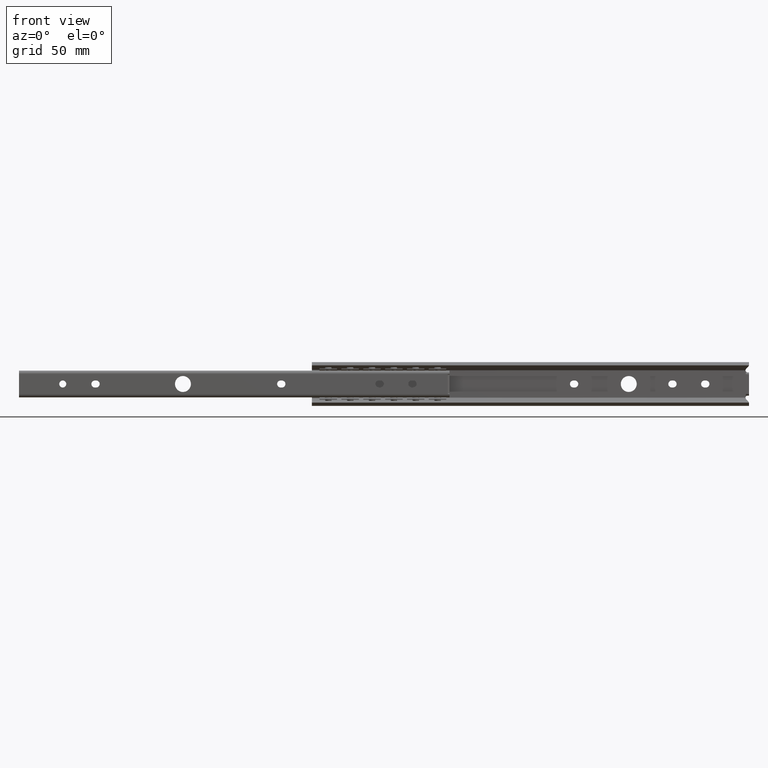
[diagram: clean part render]
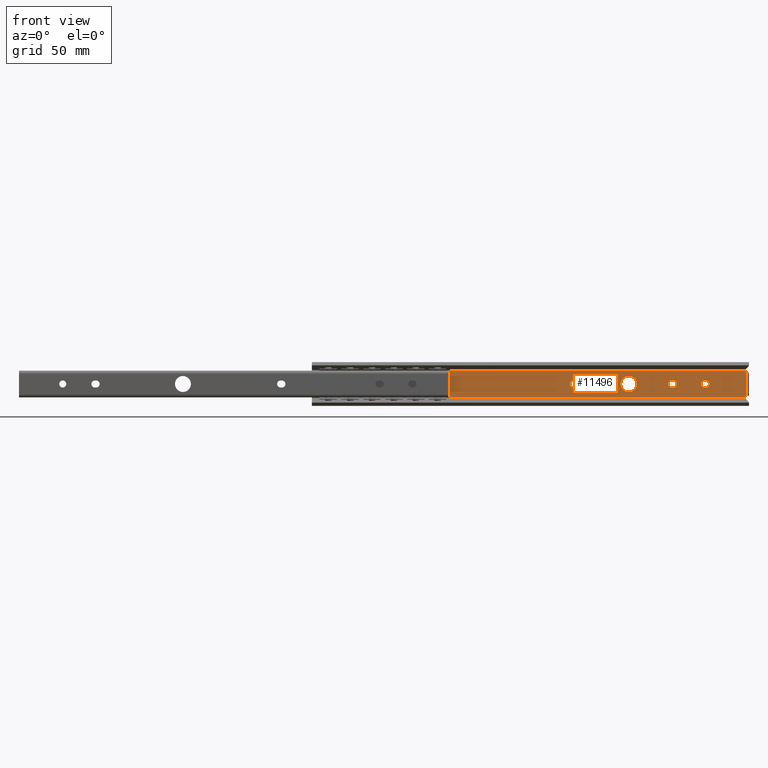
[diagram: same view with one face highlighted and labeled with its STEP entity id]
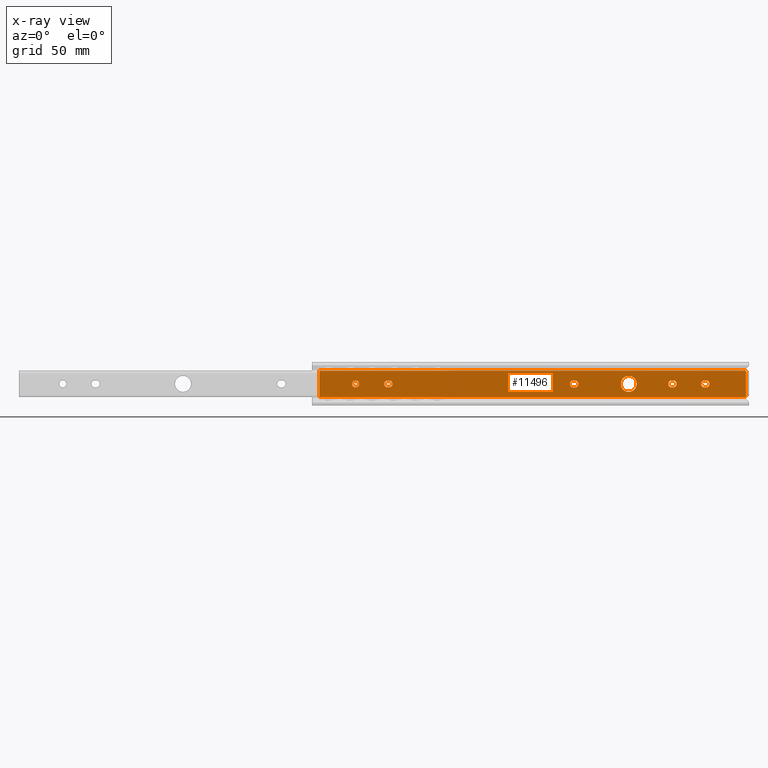
[diagram: x-ray of the same camera — body ghosted, the highlighted face saturated]
A machine part, front view. The second image highlights one B-rep face of the part: STEP entity #11496.
The next image is the same camera in x-ray: the body ghosted, the highlighted face saturated — about 0% of this face is hidden behind the body in this view.
In plain terms, the highlighted face is a freeform B-spline surface patch.
Its self-contained STEP definition (entity closure, byte-faithful):
#8537=CARTESIAN_POINT('',(141.375515229066510,-1.399999999999956,0.430824958969968));
#8538=VERTEX_POINT('',#8537);
#8539=CARTESIAN_POINT('',(145.0,-1.399999999999956,-3.650000000000000));
#8540=VERTEX_POINT('',#8539);
#8541=CARTESIAN_POINT('',(141.375515229066560,-1.399999999999956,0.430824958969968));
#8542=CARTESIAN_POINT('',(141.349999999999970,-1.399999999999956,0.216168039228414));
#8543=CARTESIAN_POINT('',(141.349999999999990,-1.399999999999956,0.0));
#8544=CARTESIAN_POINT('',(141.349999999999990,-1.399999999999956,-3.650000000000000));
#8545=CARTESIAN_POINT('',(145.0,-1.399999999999956,-3.650000000000000));
#8553=(BOUNDED_CURVE()B_SPLINE_CURVE(2,(#8541,#8542,#8543,#8544,#8545),.UNSPECIFIED.,.F.,.U.)B_SPLINE_CURVE_WITH_KNOTS((3,2,3),(0.729562473285040,0.750000000000000,1.0),.UNSPECIFIED.)CURVE()GEOMETRIC_REPRESENTATION_ITEM()RATIONAL_B_SPLINE_CURVE((0.956026753735892,0.976055948063478,1.0,0.707106781186547,1.0))REPRESENTATION_ITEM(''));
#8554=EDGE_CURVE('',#8538,#8540,#8553,.T.);
#8556=CARTESIAN_POINT('',(148.643192014112290,-1.399999999999956,-0.222827171386619));
#8557=VERTEX_POINT('',#8556);
#8558=CARTESIAN_POINT('',(145.0,-1.399999999999956,-3.650000000000000));
#8559=CARTESIAN_POINT('',(148.433577140269510,-1.399999999999957,-3.650000000000000));
#8560=CARTESIAN_POINT('',(148.643192014112260,-1.399999999999956,-0.222827171386619));
#8568=(BOUNDED_CURVE()B_SPLINE_CURVE(2,(#8558,#8559,#8560),.UNSPECIFIED.,.F.,.U.)B_SPLINE_CURVE_WITH_KNOTS((3,3),(0.0,0.239332962044529),.UNSPECIFIED.)CURVE()GEOMETRIC_REPRESENTATION_ITEM()RATIONAL_B_SPLINE_CURVE((1.0,0.719603993514480,0.976072041250052))REPRESENTATION_ITEM(''));
#8569=EDGE_CURVE('',#8540,#8557,#8568,.T.);
#8636=CARTESIAN_POINT('',(145.0,-1.399999999999956,3.650000000000000));
#8637=VERTEX_POINT('',#8636);
#8638=CARTESIAN_POINT('',(145.0,-1.399999999999956,3.650000000000000));
#8639=CARTESIAN_POINT('',(141.758162984732080,-1.399999999999956,3.649999999999999));
#8640=CARTESIAN_POINT('',(141.375515229066560,-1.399999999999956,0.430824958969968));
#8648=(BOUNDED_CURVE()B_SPLINE_CURVE(2,(#8638,#8639,#8640),.UNSPECIFIED.,.F.,.U.)B_SPLINE_CURVE_WITH_KNOTS((3,3),(0.500000000000000,0.729562473285039),.UNSPECIFIED.)CURVE()GEOMETRIC_REPRESENTATION_ITEM()RATIONAL_B_SPLINE_CURVE((1.0,0.731050833123071,0.956026753735890))REPRESENTATION_ITEM(''));
#8649=EDGE_CURVE('',#8637,#8538,#8648,.T.);
#8683=CARTESIAN_POINT('',(148.643192014112260,-1.399999999999956,-0.222827171386619));
#8684=CARTESIAN_POINT('',(148.649999999999920,-1.399999999999956,-0.111517588130085));
#8685=CARTESIAN_POINT('',(148.650000000000010,-1.399999999999956,0.0));
#8686=CARTESIAN_POINT('',(148.650000000000030,-1.399999999999956,3.650000000000000));
#8687=CARTESIAN_POINT('',(145.0,-1.399999999999956,3.650000000000000));
#8695=(BOUNDED_CURVE()B_SPLINE_CURVE(2,(#8683,#8684,#8685,#8686,#8687),.UNSPECIFIED.,.F.,.U.)B_SPLINE_CURVE_WITH_KNOTS((3,2,3),(0.239332962044529,0.250000000000000,0.500000000000000),.UNSPECIFIED.)CURVE()GEOMETRIC_REPRESENTATION_ITEM()RATIONAL_B_SPLINE_CURVE((0.976072041250051,0.987502787672067,1.0,0.707106781186547,1.0))REPRESENTATION_ITEM(''));
#8696=EDGE_CURVE('',#8557,#8637,#8695,.T.);
#8723=CARTESIAN_POINT('',(18.411184758290592,-1.399999999999956,0.188854779425486));
#8724=VERTEX_POINT('',#8723);
#8725=CARTESIAN_POINT('',(20.0,-1.399999999999956,-1.600000000000000));
#8726=VERTEX_POINT('',#8725);
#8727=CARTESIAN_POINT('',(18.411184758290592,-1.399999999999956,0.188854779425486));
#8728=CARTESIAN_POINT('',(18.399999999999999,-1.399999999999956,0.094758595459749));
#8729=CARTESIAN_POINT('',(18.399999999999999,-1.399999999999956,0.0));
#8730=CARTESIAN_POINT('',(18.399999999999991,-1.399999999999956,-1.600000000000000));
#8731=CARTESIAN_POINT('',(20.0,-1.399999999999956,-1.600000000000000));
#8739=(BOUNDED_CURVE()B_SPLINE_CURVE(2,(#8727,#8728,#8729,#8730,#8731),.UNSPECIFIED.,.F.,.U.)B_SPLINE_CURVE_WITH_KNOTS((3,2,3),(0.729562472670067,0.750000000000000,1.0),.UNSPECIFIED.)CURVE()GEOMETRIC_REPRESENTATION_ITEM()RATIONAL_B_SPLINE_CURVE((0.956026752530521,0.976055947342993,1.0,0.707106781186548,1.0))REPRESENTATION_ITEM(''));
#8740=EDGE_CURVE('',#8724,#8726,#8739,.T.);
#8742=CARTESIAN_POINT('',(21.597015677303609,-1.399999999999956,-0.097677666057755));
#8743=VERTEX_POINT('',#8742);
#8744=CARTESIAN_POINT('',(20.0,-1.399999999999956,-1.600000000000000));
#8745=CARTESIAN_POINT('',(21.505129701757706,-1.399999999999957,-1.600000000000000));
#8746=CARTESIAN_POINT('',(21.597015677303609,-1.399999999999956,-0.097677666057755));
#8754=(BOUNDED_CURVE()B_SPLINE_CURVE(2,(#8744,#8745,#8746),.UNSPECIFIED.,.F.,.U.)B_SPLINE_CURVE_WITH_KNOTS((3,3),(0.0,0.239332961636498),.UNSPECIFIED.)CURVE()GEOMETRIC_REPRESENTATION_ITEM()RATIONAL_B_SPLINE_CURVE((1.0,0.719603993992519,0.976072040375563))REPRESENTATION_ITEM(''));
#8755=EDGE_CURVE('',#8726,#8743,#8754,.T.);
#8822=CARTESIAN_POINT('',(20.0,-1.399999999999956,1.600000000000000));
#8823=VERTEX_POINT('',#8822);
#8824=CARTESIAN_POINT('',(20.0,-1.399999999999956,1.600000000000000));
#8825=CARTESIAN_POINT('',(18.578920765637967,-1.399999999999956,1.600000000000000));
#8826=CARTESIAN_POINT('',(18.411184758290592,-1.399999999999956,0.188854779425486));
#8834=(BOUNDED_CURVE()B_SPLINE_CURVE(2,(#8824,#8825,#8826),.UNSPECIFIED.,.F.,.U.)B_SPLINE_CURVE_WITH_KNOTS((3,3),(0.500000000000000,0.729562472670068),.UNSPECIFIED.)CURVE()GEOMETRIC_REPRESENTATION_ITEM()RATIONAL_B_SPLINE_CURVE((1.0,0.731050833843554,0.956026752530523))REPRESENTATION_ITEM(''));
#8835=EDGE_CURVE('',#8823,#8724,#8834,.T.);
#8869=CARTESIAN_POINT('',(21.597015677303613,-1.399999999999957,-0.097677666057755));
#8870=CARTESIAN_POINT('',(21.600000000000001,-1.399999999999955,-0.048884424087582));
#8871=CARTESIAN_POINT('',(21.600000000000001,-1.399999999999956,0.0));
#8872=CARTESIAN_POINT('',(21.600000000000005,-1.399999999999956,1.600000000000000));
#8873=CARTESIAN_POINT('',(20.0,-1.399999999999956,1.600000000000000));
#8881=(BOUNDED_CURVE()B_SPLINE_CURVE(2,(#8869,#8870,#8871,#8872,#8873),.UNSPECIFIED.,.F.,.U.)B_SPLINE_CURVE_WITH_KNOTS((3,2,3),(0.239332961636497,0.250000000000000,0.500000000000000),.UNSPECIFIED.)CURVE()GEOMETRIC_REPRESENTATION_ITEM()RATIONAL_B_SPLINE_CURVE((0.976072040375563,0.987502787194029,1.0,0.707106781186548,1.0))REPRESENTATION_ITEM(''));
#8882=EDGE_CURVE('',#8743,#8823,#8881,.T.);
#8892=CARTESIAN_POINT('',(179.699999999999990,-1.399999999999920,-1.600000000000000));
#8893=VERTEX_POINT('',#8892);
#8894=CARTESIAN_POINT('',(180.300000000000010,-1.399999999999956,-1.600000000000000));
#8895=VERTEX_POINT('',#8894);
#8896=CARTESIAN_POINT('',(179.699999999999990,-1.399999999999920,-1.600000000000000));
#8897=CARTESIAN_POINT('',(180.300000000000010,-1.399999999999956,-1.600000000000000));
#8898=QUASI_UNIFORM_CURVE('',1,(#8896,#8897),.UNSPECIFIED.,.F.,.U.);
#8899=EDGE_CURVE('',#8893,#8895,#8898,.T.);
#8941=CARTESIAN_POINT('',(179.699999999999990,-1.399999999999956,1.599999999999910));
#8942=VERTEX_POINT('',#8941);
#8943=CARTESIAN_POINT('',(179.699999999999990,-1.399999999999956,1.600000000000000));
#8944=CARTESIAN_POINT('',(178.099999999999970,-1.399999999999956,1.600000000000000));
#8945=CARTESIAN_POINT('',(178.099999999999990,-1.399999999999956,0.0));
#8946=CARTESIAN_POINT('',(178.099999999999970,-1.399999999999956,-1.600000000000000));
#8947=CARTESIAN_POINT('',(179.699999999999990,-1.399999999999956,-1.600000000000000));
#8955=(BOUNDED_CURVE()B_SPLINE_CURVE(2,(#8943,#8944,#8945,#8946,#8947),.UNSPECIFIED.,.F.,.U.)B_SPLINE_CURVE_WITH_KNOTS((3,2,3),(0.0,0.500000000000000,1.0),.UNSPECIFIED.)CURVE()GEOMETRIC_REPRESENTATION_ITEM()RATIONAL_B_SPLINE_CURVE((1.0,0.707106781186548,1.0,0.707106781186548,1.0))REPRESENTATION_ITEM(''));
#8956=EDGE_CURVE('',#8942,#8893,#8955,.T.);
#8989=CARTESIAN_POINT('',(180.300000000000010,-1.399999999999956,1.599999999999910));
#8990=VERTEX_POINT('',#8989);
#8991=CARTESIAN_POINT('',(180.300000000000010,-1.399999999999956,1.599999999999910));
#8992=CARTESIAN_POINT('',(179.699999999999990,-1.399999999999956,1.599999999999910));
#8993=QUASI_UNIFORM_CURVE('',1,(#8991,#8992),.UNSPECIFIED.,.F.,.U.);
#8994=EDGE_CURVE('',#8990,#8942,#8993,.T.);
#9030=CARTESIAN_POINT('',(180.300000000000010,-1.399999999999956,-1.600000000000000));
#9031=CARTESIAN_POINT('',(181.899999999999980,-1.399999999999956,-1.600000000000000));
#9032=CARTESIAN_POINT('',(181.900000000000010,-1.399999999999956,0.0));
#9033=CARTESIAN_POINT('',(181.899999999999980,-1.399999999999956,1.600000000000000));
#9034=CARTESIAN_POINT('',(180.300000000000010,-1.399999999999956,1.600000000000000));
#9042=(BOUNDED_CURVE()B_SPLINE_CURVE(2,(#9030,#9031,#9032,#9033,#9034),.UNSPECIFIED.,.F.,.U.)B_SPLINE_CURVE_WITH_KNOTS((3,2,3),(0.0,0.500000000000000,1.0),.UNSPECIFIED.)CURVE()GEOMETRIC_REPRESENTATION_ITEM()RATIONAL_B_SPLINE_CURVE((1.0,0.707106781186548,1.0,0.707106781186548,1.0))REPRESENTATION_ITEM(''));
#9043=EDGE_CURVE('',#8895,#8990,#9042,.T.);
#9070=CARTESIAN_POINT('',(164.699999999999990,-1.399999999999920,-1.600000000000000));
#9071=VERTEX_POINT('',#9070);
#9072=CARTESIAN_POINT('',(165.300000000000010,-1.399999999999956,-1.600000000000000));
#9073=VERTEX_POINT('',#9072);
#9074=CARTESIAN_POINT('',(164.699999999999990,-1.399999999999920,-1.600000000000000));
#9075=CARTESIAN_POINT('',(165.300000000000010,-1.399999999999956,-1.600000000000000));
#9076=QUASI_UNIFORM_CURVE('',1,(#9074,#9075),.UNSPECIFIED.,.F.,.U.);
#9077=EDGE_CURVE('',#9071,#9073,#9076,.T.);
#9119=CARTESIAN_POINT('',(164.699999999999990,-1.399999999999956,1.599999999999910));
#9120=VERTEX_POINT('',#9119);
#9121=CARTESIAN_POINT('',(164.699999999999990,-1.399999999999956,1.600000000000000));
#9122=CARTESIAN_POINT('',(163.099999999999990,-1.399999999999956,1.600000000000000));
#9123=CARTESIAN_POINT('',(163.099999999999990,-1.399999999999956,0.0));
#9124=CARTESIAN_POINT('',(163.099999999999990,-1.399999999999956,-1.600000000000000));
#9125=CARTESIAN_POINT('',(164.699999999999990,-1.399999999999956,-1.600000000000000));
#9133=(BOUNDED_CURVE()B_SPLINE_CURVE(2,(#9121,#9122,#9123,#9124,#9125),.UNSPECIFIED.,.F.,.U.)B_SPLINE_CURVE_WITH_KNOTS((3,2,3),(0.0,0.500000000000000,1.0),.UNSPECIFIED.)CURVE()GEOMETRIC_REPRESENTATION_ITEM()RATIONAL_B_SPLINE_CURVE((1.0,0.707106781186548,1.0,0.707106781186548,1.0))REPRESENTATION_ITEM(''));
#9134=EDGE_CURVE('',#9120,#9071,#9133,.T.);
#9167=CARTESIAN_POINT('',(165.300000000000010,-1.399999999999956,1.599999999999910));
#9168=VERTEX_POINT('',#9167);
#9169=CARTESIAN_POINT('',(165.300000000000010,-1.399999999999956,1.599999999999910));
#9170=CARTESIAN_POINT('',(164.699999999999990,-1.399999999999956,1.599999999999910));
#9171=QUASI_UNIFORM_CURVE('',1,(#9169,#9170),.UNSPECIFIED.,.F.,.U.);
#9172=EDGE_CURVE('',#9168,#9120,#9171,.T.);
#9208=CARTESIAN_POINT('',(165.300000000000010,-1.399999999999956,-1.600000000000000));
#9209=CARTESIAN_POINT('',(166.900000000000010,-1.399999999999956,-1.600000000000000));
#9210=CARTESIAN_POINT('',(166.900000000000010,-1.399999999999956,0.0));
#9211=CARTESIAN_POINT('',(166.900000000000010,-1.399999999999956,1.600000000000000));
#9212=CARTESIAN_POINT('',(165.300000000000010,-1.399999999999956,1.600000000000000));
#9220=(BOUNDED_CURVE()B_SPLINE_CURVE(2,(#9208,#9209,#9210,#9211,#9212),.UNSPECIFIED.,.F.,.U.)B_SPLINE_CURVE_WITH_KNOTS((3,2,3),(0.0,0.500000000000000,1.0),.UNSPECIFIED.)CURVE()GEOMETRIC_REPRESENTATION_ITEM()RATIONAL_B_SPLINE_CURVE((1.0,0.707106781186548,1.0,0.707106781186548,1.0))REPRESENTATION_ITEM(''));
#9221=EDGE_CURVE('',#9073,#9168,#9220,.T.);
#9248=CARTESIAN_POINT('',(119.700000000000000,-1.399999999999920,-1.600000000000000));
#9249=VERTEX_POINT('',#9248);
#9250=CARTESIAN_POINT('',(120.300000000000000,-1.399999999999956,-1.600000000000000));
#9251=VERTEX_POINT('',#9250);
#9252=CARTESIAN_POINT('',(119.700000000000000,-1.399999999999920,-1.600000000000000));
#9253=CARTESIAN_POINT('',(120.300000000000000,-1.399999999999956,-1.600000000000000));
#9254=QUASI_UNIFORM_CURVE('',1,(#9252,#9253),.UNSPECIFIED.,.F.,.U.);
#9255=EDGE_CURVE('',#9249,#9251,#9254,.T.);
#9297=CARTESIAN_POINT('',(119.700000000000000,-1.399999999999956,1.599999999999910));
#9298=VERTEX_POINT('',#9297);
#9299=CARTESIAN_POINT('',(119.700000000000000,-1.399999999999956,1.600000000000000));
#9300=CARTESIAN_POINT('',(118.099999999999980,-1.399999999999956,1.600000000000000));
#9301=CARTESIAN_POINT('',(118.099999999999990,-1.399999999999956,0.0));
#9302=CARTESIAN_POINT('',(118.099999999999980,-1.399999999999956,-1.600000000000000));
#9303=CARTESIAN_POINT('',(119.700000000000000,-1.399999999999956,-1.600000000000000));
#9311=(BOUNDED_CURVE()B_SPLINE_CURVE(2,(#9299,#9300,#9301,#9302,#9303),.UNSPECIFIED.,.F.,.U.)B_SPLINE_CURVE_WITH_KNOTS((3,2,3),(0.0,0.500000000000000,1.0),.UNSPECIFIED.)CURVE()GEOMETRIC_REPRESENTATION_ITEM()RATIONAL_B_SPLINE_CURVE((1.0,0.707106781186548,1.0,0.707106781186548,1.0))REPRESENTATION_ITEM(''));
#9312=EDGE_CURVE('',#9298,#9249,#9311,.T.);
#9345=CARTESIAN_POINT('',(120.300000000000000,-1.399999999999956,1.599999999999910));
#9346=VERTEX_POINT('',#9345);
#9347=CARTESIAN_POINT('',(120.300000000000000,-1.399999999999956,1.599999999999910));
#9348=CARTESIAN_POINT('',(119.700000000000000,-1.399999999999956,1.599999999999910));
#9349=QUASI_UNIFORM_CURVE('',1,(#9347,#9348),.UNSPECIFIED.,.F.,.U.);
#9350=EDGE_CURVE('',#9346,#9298,#9349,.T.);
#9386=CARTESIAN_POINT('',(120.300000000000000,-1.399999999999956,-1.600000000000000));
#9387=CARTESIAN_POINT('',(121.900000000000010,-1.399999999999956,-1.600000000000000));
#9388=CARTESIAN_POINT('',(121.900000000000010,-1.399999999999956,0.0));
#9389=CARTESIAN_POINT('',(121.900000000000010,-1.399999999999956,1.600000000000000));
#9390=CARTESIAN_POINT('',(120.300000000000000,-1.399999999999956,1.600000000000000));
#9398=(BOUNDED_CURVE()B_SPLINE_CURVE(2,(#9386,#9387,#9388,#9389,#9390),.UNSPECIFIED.,.F.,.U.)B_SPLINE_CURVE_WITH_KNOTS((3,2,3),(0.0,0.500000000000000,1.0),.UNSPECIFIED.)CURVE()GEOMETRIC_REPRESENTATION_ITEM()RATIONAL_B_SPLINE_CURVE((1.0,0.707106781186548,1.0,0.707106781186548,1.0))REPRESENTATION_ITEM(''));
#9399=EDGE_CURVE('',#9251,#9346,#9398,.T.);
#9426=CARTESIAN_POINT('',(34.700000000000003,-1.399999999999920,-1.600000000000080));
#9427=VERTEX_POINT('',#9426);
#9428=CARTESIAN_POINT('',(35.299999999999997,-1.399999999999956,-1.600000000000080));
#9429=VERTEX_POINT('',#9428);
#9430=CARTESIAN_POINT('',(34.700000000000003,-1.399999999999920,-1.600000000000080));
#9431=CARTESIAN_POINT('',(35.299999999999997,-1.399999999999956,-1.600000000000080));
#9432=QUASI_UNIFORM_CURVE('',1,(#9430,#9431),.UNSPECIFIED.,.F.,.U.);
#9433=EDGE_CURVE('',#9427,#9429,#9432,.T.);
#9475=CARTESIAN_POINT('',(34.700000000000003,-1.399999999999956,1.600000000000025));
#9476=VERTEX_POINT('',#9475);
#9477=CARTESIAN_POINT('',(34.700000000000003,-1.399999999999956,1.600000000000000));
#9478=CARTESIAN_POINT('',(33.100000000000009,-1.399999999999956,1.600000000000000));
#9479=CARTESIAN_POINT('',(33.100000000000001,-1.399999999999956,0.0));
#9480=CARTESIAN_POINT('',(33.100000000000009,-1.399999999999956,-1.600000000000000));
#9481=CARTESIAN_POINT('',(34.700000000000003,-1.399999999999920,-1.600000000000080));
#9489=(BOUNDED_CURVE()B_SPLINE_CURVE(2,(#9477,#9478,#9479,#9480,#9481),.UNSPECIFIED.,.F.,.U.)B_SPLINE_CURVE_WITH_KNOTS((3,2,3),(0.0,0.500000000000000,1.0),.UNSPECIFIED.)CURVE()GEOMETRIC_REPRESENTATION_ITEM()RATIONAL_B_SPLINE_CURVE((1.0,0.707106781186548,1.0,0.707106781186548,1.0))REPRESENTATION_ITEM(''));
#9490=EDGE_CURVE('',#9476,#9427,#9489,.T.);
#9523=CARTESIAN_POINT('',(35.299999999999997,-1.399999999999956,1.600000000000025));
#9524=VERTEX_POINT('',#9523);
#9525=CARTESIAN_POINT('',(35.299999999999997,-1.399999999999956,1.600000000000025));
#9526=CARTESIAN_POINT('',(34.700000000000003,-1.399999999999956,1.600000000000025));
#9527=QUASI_UNIFORM_CURVE('',1,(#9525,#9526),.UNSPECIFIED.,.F.,.U.);
#9528=EDGE_CURVE('',#9524,#9476,#9527,.T.);
#9564=CARTESIAN_POINT('',(35.299999999999997,-1.399999999999956,-1.600000000000080));
#9565=CARTESIAN_POINT('',(36.900000000000006,-1.399999999999956,-1.600000000000000));
#9566=CARTESIAN_POINT('',(36.899999999999999,-1.399999999999956,0.0));
#9567=CARTESIAN_POINT('',(36.900000000000006,-1.399999999999956,1.600000000000000));
#9568=CARTESIAN_POINT('',(35.299999999999997,-1.399999999999956,1.600000000000000));
#9576=(BOUNDED_CURVE()B_SPLINE_CURVE(2,(#9564,#9565,#9566,#9567,#9568),.UNSPECIFIED.,.F.,.U.)B_SPLINE_CURVE_WITH_KNOTS((3,2,3),(0.0,0.500000000000000,1.0),.UNSPECIFIED.)CURVE()GEOMETRIC_REPRESENTATION_ITEM()RATIONAL_B_SPLINE_CURVE((1.0,0.707106781186548,1.0,0.707106781186548,1.0))REPRESENTATION_ITEM(''));
#9577=EDGE_CURVE('',#9429,#9524,#9576,.T.);
#9708=CARTESIAN_POINT('',(198.599999999999990,-1.400000000000204,5.300000000000000));
#9709=VERTEX_POINT('',#9708);
#9715=CARTESIAN_POINT('',(198.599999999999990,-1.400000000000204,-5.300000000000100));
#9716=VERTEX_POINT('',#9715);
#9717=CARTESIAN_POINT('',(198.599999999999990,-1.400000000000204,-5.300000000000100));
#9718=CARTESIAN_POINT('',(198.599999999999990,-1.400000000000204,5.300000000000000));
#9719=QUASI_UNIFORM_CURVE('',1,(#9717,#9718),.UNSPECIFIED.,.F.,.U.);
#9720=EDGE_CURVE('',#9716,#9709,#9719,.T.);
#9869=CARTESIAN_POINT('',(199.400000000000010,-1.400000000000204,5.300000000000000));
#9870=VERTEX_POINT('',#9869);
#9876=CARTESIAN_POINT('',(198.599999999999990,-1.400000000000204,5.300000000000000));
#9877=CARTESIAN_POINT('',(199.400000000000010,-1.400000000000204,5.300000000000000));
#9878=QUASI_UNIFORM_CURVE('',1,(#9876,#9877),.UNSPECIFIED.,.F.,.U.);
#9879=EDGE_CURVE('',#9709,#9870,#9878,.T.);
#10124=CARTESIAN_POINT('',(198.424053688014000,-1.399999999999920,6.081989000000000));
#10125=VERTEX_POINT('',#10124);
#10139=CARTESIAN_POINT('',(198.424053688014000,-1.399999999999956,6.081989000000002));
#10140=CARTESIAN_POINT('',(198.598737686288560,-1.399999999999956,5.300000000000001));
#10141=CARTESIAN_POINT('',(199.400000000000010,-1.399999999999956,5.300000000000000));
#10149=(BOUNDED_CURVE()B_SPLINE_CURVE(2,(#10139,#10140,#10141),.UNSPECIFIED.,.F.,.U.)CURVE()GEOMETRIC_REPRESENTATION_ITEM()QUASI_UNIFORM_CURVE()RATIONAL_B_SPLINE_CURVE((1.0,0.780388044500939,1.0))REPRESENTATION_ITEM(''));
#10150=EDGE_CURVE('',#10125,#9870,#10149,.T.);
#10306=CARTESIAN_POINT('',(199.400000000000010,-1.400000000000180,-5.300000000000100));
#10307=VERTEX_POINT('',#10306);
#10313=CARTESIAN_POINT('',(198.424053688014000,-1.399999999999956,-6.081989000000000));
#10314=VERTEX_POINT('',#10313);
#10315=CARTESIAN_POINT('',(199.400000000000010,-1.399999999999956,-5.300000000000100));
#10316=CARTESIAN_POINT('',(198.598737686288700,-1.399999999999956,-5.300000000000101));
#10317=CARTESIAN_POINT('',(198.424053688014110,-1.399999999999956,-6.081989000000006));
#10325=(BOUNDED_CURVE()B_SPLINE_CURVE(2,(#10315,#10316,#10317),.UNSPECIFIED.,.F.,.U.)CURVE()GEOMETRIC_REPRESENTATION_ITEM()QUASI_UNIFORM_CURVE()RATIONAL_B_SPLINE_CURVE((1.0,0.780388044500969,1.0))REPRESENTATION_ITEM(''));
#10326=EDGE_CURVE('',#10307,#10314,#10325,.T.);
#10393=CARTESIAN_POINT('',(198.599999999999990,-1.400000000000204,-5.300000000000100));
#10394=CARTESIAN_POINT('',(199.400000000000010,-1.400000000000180,-5.300000000000100));
#10395=QUASI_UNIFORM_CURVE('',1,(#10393,#10394),.UNSPECIFIED.,.F.,.U.);
#10396=EDGE_CURVE('',#9716,#10307,#10395,.T.);
#11117=CARTESIAN_POINT('',(3.499999999999950,-1.399999999999920,-4.558823257703440));
#11118=VERTEX_POINT('',#11117);
#11246=CARTESIAN_POINT('',(3.499999999999950,-1.399999999999920,4.558823257703240));
#11247=VERTEX_POINT('',#11246);
#11313=CARTESIAN_POINT('',(3.499999999999950,-1.399999999999920,-6.081989000000000));
#11314=VERTEX_POINT('',#11313);
#11328=CARTESIAN_POINT('',(3.499999999999950,-1.399999999999920,-4.558823257703440));
#11329=CARTESIAN_POINT('',(3.499999999999950,-1.399999999999920,-6.081989000000000));
#11330=QUASI_UNIFORM_CURVE('',1,(#11328,#11329),.UNSPECIFIED.,.F.,.U.);
#11331=EDGE_CURVE('',#11118,#11314,#11330,.T.);
#11338=CARTESIAN_POINT('',(3.499999999999950,-1.399999999999920,6.081989000000000));
#11339=VERTEX_POINT('',#11338);
#11340=CARTESIAN_POINT('',(3.499999999999950,-1.399999999999920,6.081989000000000));
#11341=CARTESIAN_POINT('',(3.499999999999950,-1.399999999999920,4.558823257703240));
#11342=QUASI_UNIFORM_CURVE('',1,(#11340,#11341),.UNSPECIFIED.,.F.,.U.);
#11343=EDGE_CURVE('',#11339,#11247,#11342,.T.);
#11427=CARTESIAN_POINT('',(198.424053688014000,-1.399999999999920,6.081989000000000));
#11428=CARTESIAN_POINT('',(3.499999999999950,-1.399999999999920,6.081989000000000));
#11429=QUASI_UNIFORM_CURVE('',1,(#11427,#11428),.UNSPECIFIED.,.F.,.U.);
#11430=EDGE_CURVE('',#10125,#11339,#11429,.T.);
#11435=CARTESIAN_POINT('',(-6.285203920415448,-1.399999999999920,6.689579519878855));
#11436=CARTESIAN_POINT('',(-6.285203920415448,-1.399999999999920,-6.689579084861102));
#11437=CARTESIAN_POINT('',(209.185195163002990,-1.399999999999920,6.689579519878855));
#11438=CARTESIAN_POINT('',(209.185195163002990,-1.399999999999920,-6.689579084861102));
#11439=B_SPLINE_SURFACE_WITH_KNOTS('',1,1,((#11435,#11437),(#11436,#11438)),.UNSPECIFIED.,.F.,.F.,.U.,(2,2),(2,2),(0.0,13.379158604739960),(0.0,215.470399083418410),.UNSPECIFIED.);
#11440=ORIENTED_EDGE('',*,*,#10396,.F.);
#11441=ORIENTED_EDGE('',*,*,#9720,.T.);
#11442=ORIENTED_EDGE('',*,*,#9879,.T.);
#11443=ORIENTED_EDGE('',*,*,#10150,.F.);
#11444=ORIENTED_EDGE('',*,*,#11430,.T.);
#11445=ORIENTED_EDGE('',*,*,#11343,.T.);
#11446=CARTESIAN_POINT('',(3.499999999999950,-1.399999999999920,4.558823257703240));
#11447=CARTESIAN_POINT('',(3.499999999999950,-1.399999999999920,-4.558823257703440));
#11448=QUASI_UNIFORM_CURVE('',1,(#11446,#11447),.UNSPECIFIED.,.F.,.U.);
#11449=EDGE_CURVE('',#11247,#11118,#11448,.T.);
#11450=ORIENTED_EDGE('',*,*,#11449,.T.);
#11451=ORIENTED_EDGE('',*,*,#11331,.T.);
#11452=CARTESIAN_POINT('',(198.424053688014000,-1.399999999999956,-6.081989000000000));
#11453=CARTESIAN_POINT('',(3.499999999999950,-1.399999999999920,-6.081989000000000));
#11454=QUASI_UNIFORM_CURVE('',1,(#11452,#11453),.UNSPECIFIED.,.F.,.U.);
#11455=EDGE_CURVE('',#10314,#11314,#11454,.T.);
#11456=ORIENTED_EDGE('',*,*,#11455,.F.);
#11457=ORIENTED_EDGE('',*,*,#10326,.F.);
#11458=EDGE_LOOP('',(#11440,#11441,#11442,#11443,#11444,#11445,#11450,#11451,#11456,#11457));
#11459=FACE_OUTER_BOUND('',#11458,.T.);
#11460=ORIENTED_EDGE('',*,*,#9221,.F.);
#11461=ORIENTED_EDGE('',*,*,#9077,.F.);
#11462=ORIENTED_EDGE('',*,*,#9134,.F.);
#11463=ORIENTED_EDGE('',*,*,#9172,.F.);
#11464=EDGE_LOOP('',(#11460,#11461,#11462,#11463));
#11465=FACE_BOUND('',#11464,.T.);
#11466=ORIENTED_EDGE('',*,*,#9399,.F.);
#11467=ORIENTED_EDGE('',*,*,#9255,.F.);
#11468=ORIENTED_EDGE('',*,*,#9312,.F.);
#11469=ORIENTED_EDGE('',*,*,#9350,.F.);
#11470=EDGE_LOOP('',(#11466,#11467,#11468,#11469));
#11471=FACE_BOUND('',#11470,.T.);
#11472=ORIENTED_EDGE('',*,*,#9577,.F.);
#11473=ORIENTED_EDGE('',*,*,#9433,.F.);
#11474=ORIENTED_EDGE('',*,*,#9490,.F.);
#11475=ORIENTED_EDGE('',*,*,#9528,.F.);
#11476=EDGE_LOOP('',(#11472,#11473,#11474,#11475));
#11477=FACE_BOUND('',#11476,.T.);
#11478=ORIENTED_EDGE('',*,*,#9043,.F.);
#11479=ORIENTED_EDGE('',*,*,#8899,.F.);
#11480=ORIENTED_EDGE('',*,*,#8956,.F.);
#11481=ORIENTED_EDGE('',*,*,#8994,.F.);
#11482=EDGE_LOOP('',(#11478,#11479,#11480,#11481));
#11483=FACE_BOUND('',#11482,.T.);
#11484=ORIENTED_EDGE('',*,*,#8755,.F.);
#11485=ORIENTED_EDGE('',*,*,#8740,.F.);
#11486=ORIENTED_EDGE('',*,*,#8835,.F.);
#11487=ORIENTED_EDGE('',*,*,#8882,.F.);
#11488=EDGE_LOOP('',(#11484,#11485,#11486,#11487));
#11489=FACE_BOUND('',#11488,.T.);
#11490=ORIENTED_EDGE('',*,*,#8569,.F.);
#11491=ORIENTED_EDGE('',*,*,#8554,.F.);
#11492=ORIENTED_EDGE('',*,*,#8649,.F.);
#11493=ORIENTED_EDGE('',*,*,#8696,.F.);
#11494=EDGE_LOOP('',(#11490,#11491,#11492,#11493));
#11495=FACE_BOUND('',#11494,.T.);
#11496=ADVANCED_FACE('',(#11459,#11465,#11471,#11477,#11483,#11489,#11495),#11439,.T.);